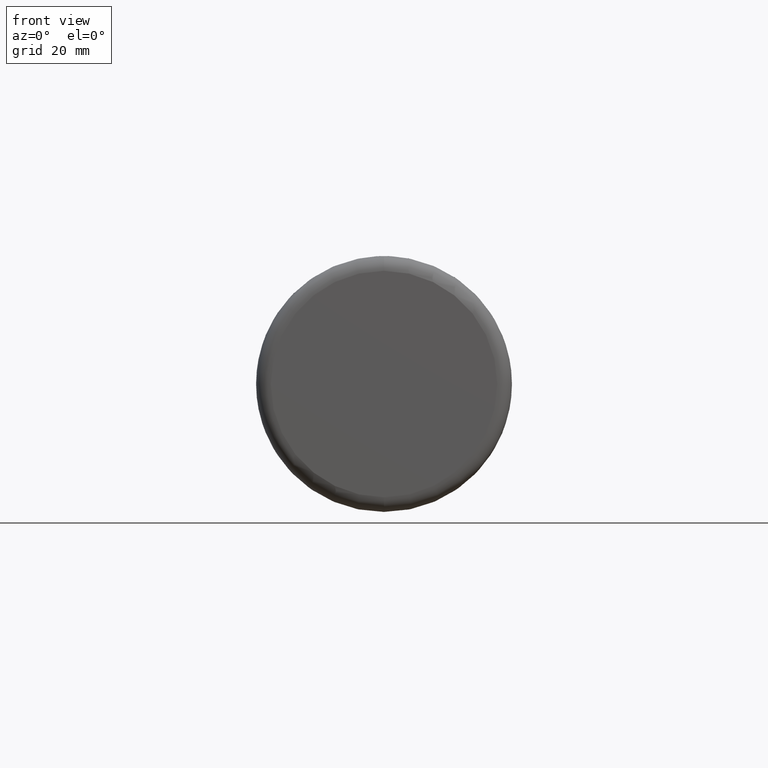
[diagram: clean part render]
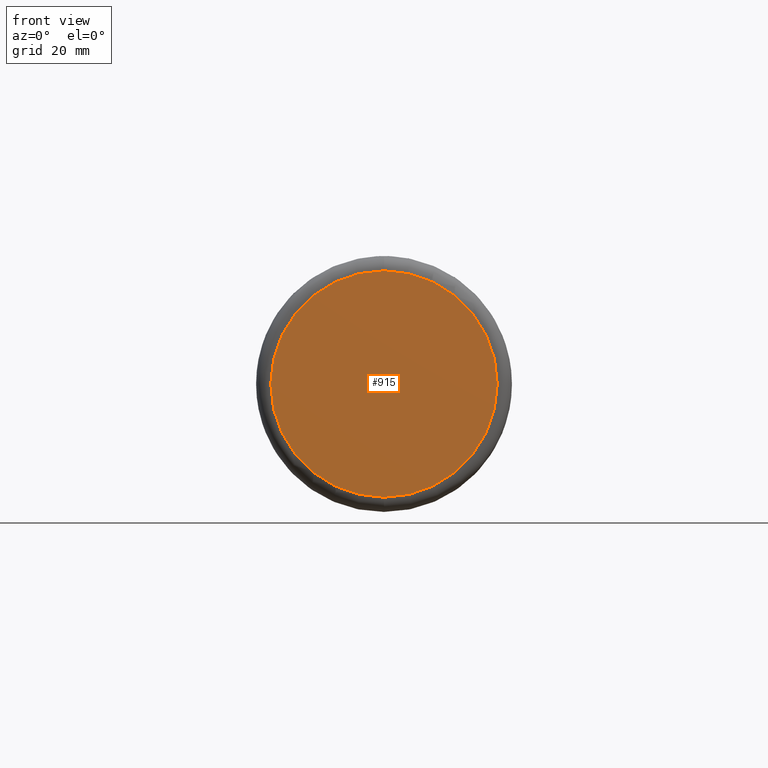
[diagram: same view with one face highlighted and labeled with its STEP entity id]
A machine part, front view. The second image highlights one B-rep face of the part: STEP entity #915.
In plain terms, the highlighted planar face has unit normal (0, 1, 0).
Its self-contained STEP definition (entity closure, byte-faithful):
#4 = AXIS2_PLACEMENT_3D ( 'NONE', #281, #4191, #3855 ) ;
#281 = CARTESIAN_POINT ( 'NONE',  ( 0.0000000000000000000, 0.0000000000000000000, 0.0000000000000000000 ) ) ;
#575 = CARTESIAN_POINT ( 'NONE',  ( 0.0000000000000000000, 0.0000000000000000000, 0.0000000000000000000 ) ) ;
#636 = VERTEX_POINT ( 'NONE', #2958 ) ;
#915 = ADVANCED_FACE ( 'NONE', ( #4364 ), #4217, .F. ) ;
#1244 = CIRCLE ( 'NONE', #4, 20.35040000000000000 ) ;
#1890 = EDGE_CURVE ( 'NONE', #3996, #636, #2849, .T. ) ;
#1993 = ORIENTED_EDGE ( 'NONE', *, *, #1890, .T. ) ;
#2613 = CARTESIAN_POINT ( 'NONE',  ( 0.0000000000000000000, 0.0000000000000000000, 0.0000000000000000000 ) ) ;
#2849 = CIRCLE ( 'NONE', #4004, 20.35040000000000000 ) ;
#2958 = CARTESIAN_POINT ( 'NONE',  ( 2.654446430087871000E-015, 0.0000000000000000000, -20.35040000000000000 ) ) ;
#2963 = EDGE_LOOP ( 'NONE', ( #1993, #3593 ) ) ;
#3228 = AXIS2_PLACEMENT_3D ( 'NONE', #575, #4614, #4204 ) ;
#3361 = DIRECTION ( 'NONE',  ( -0.0000000000000000000, -1.000000000000000000, -0.0000000000000000000 ) ) ;
#3593 = ORIENTED_EDGE ( 'NONE', *, *, #4066, .T. ) ;
#3715 = DIRECTION ( 'NONE',  ( 0.0000000000000000000, 0.0000000000000000000, 1.000000000000000000 ) ) ;
#3855 = DIRECTION ( 'NONE',  ( 0.0000000000000000000, 0.0000000000000000000, 1.000000000000000000 ) ) ;
#3996 = VERTEX_POINT ( 'NONE', #4053 ) ;
#4004 = AXIS2_PLACEMENT_3D ( 'NONE', #2613, #3361, #3715 ) ;
#4053 = CARTESIAN_POINT ( 'NONE',  ( 0.0000000000000000000, 0.0000000000000000000, 20.35040000000000000 ) ) ;
#4066 = EDGE_CURVE ( 'NONE', #636, #3996, #1244, .T. ) ;
#4191 = DIRECTION ( 'NONE',  ( -0.0000000000000000000, -1.000000000000000000, -0.0000000000000000000 ) ) ;
#4204 = DIRECTION ( 'NONE',  ( 0.0000000000000000000, -0.0000000000000000000, 1.000000000000000000 ) ) ;
#4217 = PLANE ( 'NONE',  #3228 ) ;
#4364 = FACE_OUTER_BOUND ( 'NONE', #2963, .T. ) ;
#4614 = DIRECTION ( 'NONE',  ( 0.0000000000000000000, 1.000000000000000000, 0.0000000000000000000 ) ) ;